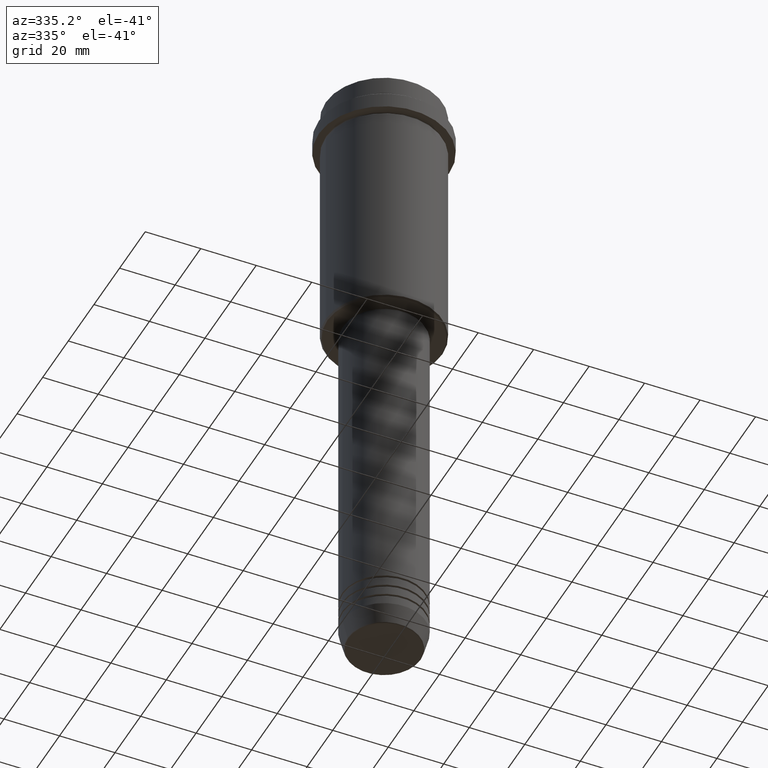
[diagram: clean part render]
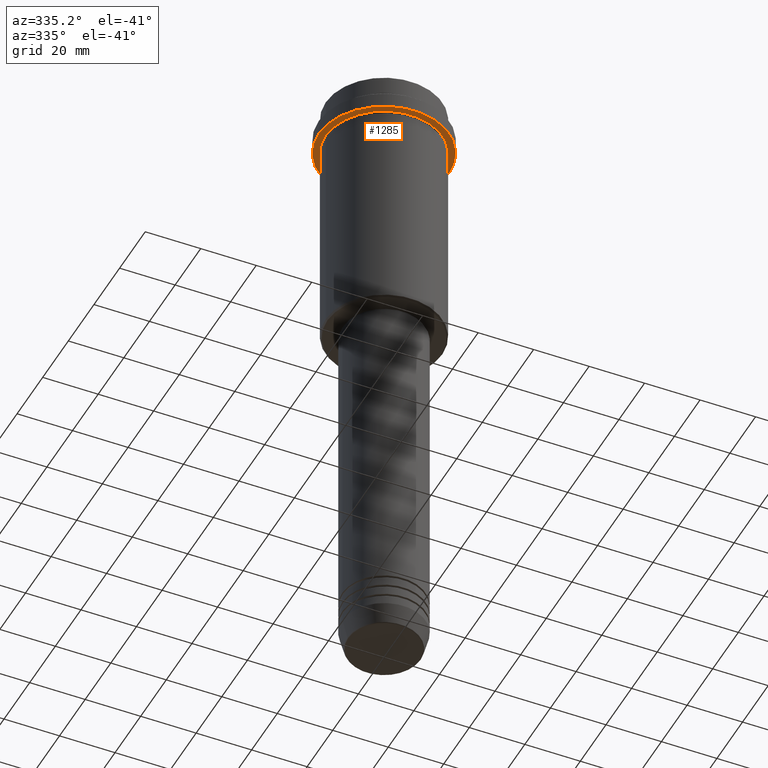
[diagram: same view with one face highlighted and labeled with its STEP entity id]
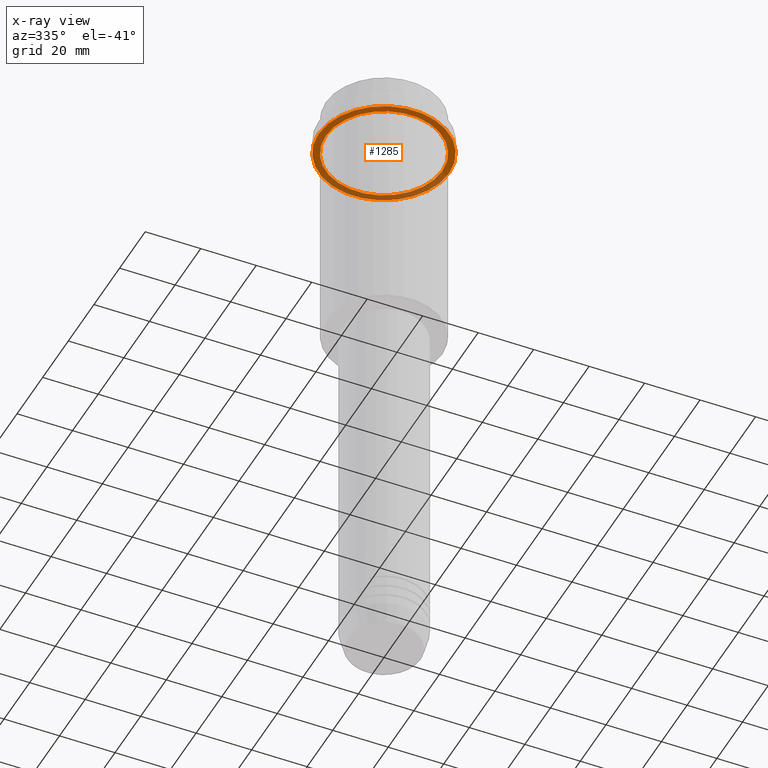
[diagram: x-ray of the same camera — body ghosted, the highlighted face saturated]
A machine part, auxiliary view. The second image highlights one B-rep face of the part: STEP entity #1285.
The next image is the same camera in x-ray: the body ghosted, the highlighted face saturated — about 35% of this face is hidden behind the body in this view.
In plain terms, the highlighted planar face has unit normal (0, 0, -1).
Its self-contained STEP definition (entity closure, byte-faithful):
#35 = CARTESIAN_POINT ( 'NONE',  ( 0.000000000000000000, 23.50000000000000355, -15.00000000000000178 ) ) ;
#203 = DIRECTION ( 'NONE',  ( -0.000000000000000000, -0.000000000000000000, 1.000000000000000000 ) ) ;
#252 = DIRECTION ( 'NONE',  ( -0.000000000000000000, -0.000000000000000000, 1.000000000000000000 ) ) ;
#287 = AXIS2_PLACEMENT_3D ( 'NONE', #621, #203, #1386 ) ;
#343 = EDGE_LOOP ( 'NONE', ( #1315, #1115 ) ) ;
#356 = EDGE_CURVE ( 'NONE', #915, #900, #811, .T. ) ;
#431 = ORIENTED_EDGE ( 'NONE', *, *, #441, .F. ) ;
#441 = EDGE_CURVE ( 'NONE', #900, #915, #927, .T. ) ;
#486 = FACE_BOUND ( 'NONE', #343, .T. ) ;
#514 = CIRCLE ( 'NONE', #544, 20.99999999999999289 ) ;
#521 = CARTESIAN_POINT ( 'NONE',  ( 20.99999999999999289, 2.571758278209440872E-15, -15.00000000000000178 ) ) ;
#532 = VERTEX_POINT ( 'NONE', #521 ) ;
#544 = AXIS2_PLACEMENT_3D ( 'NONE', #992, #891, #652 ) ;
#545 = AXIS2_PLACEMENT_3D ( 'NONE', #35, #936, #1159 ) ;
#594 = EDGE_CURVE ( 'NONE', #996, #532, #1053, .T. ) ;
#621 = CARTESIAN_POINT ( 'NONE',  ( 0.000000000000000000, 0.000000000000000000, -15.00000000000000178 ) ) ;
#629 = AXIS2_PLACEMENT_3D ( 'NONE', #1244, #252, #1133 ) ;
#652 = DIRECTION ( 'NONE',  ( -1.000000000000000000, 0.000000000000000000, 0.000000000000000000 ) ) ;
#666 = DIRECTION ( 'NONE',  ( 1.000000000000000000, 0.000000000000000000, 0.000000000000000000 ) ) ;
#703 = CARTESIAN_POINT ( 'NONE',  ( 23.50000000000000355, 0.000000000000000000, -15.00000000000000178 ) ) ;
#712 = PLANE ( 'NONE',  #545 ) ;
#769 = DIRECTION ( 'NONE',  ( -0.000000000000000000, -0.000000000000000000, 1.000000000000000000 ) ) ;
#778 = EDGE_LOOP ( 'NONE', ( #431, #1229 ) ) ;
#811 = CIRCLE ( 'NONE', #1092, 23.50000000000000355 ) ;
#891 = DIRECTION ( 'NONE',  ( -0.000000000000000000, -0.000000000000000000, 1.000000000000000000 ) ) ;
#900 = VERTEX_POINT ( 'NONE', #703 ) ;
#915 = VERTEX_POINT ( 'NONE', #1033 ) ;
#927 = CIRCLE ( 'NONE', #629, 23.50000000000000355 ) ;
#936 = DIRECTION ( 'NONE',  ( 0.000000000000000000, 0.000000000000000000, -1.000000000000000000 ) ) ;
#958 = CARTESIAN_POINT ( 'NONE',  ( -20.99999999999999289, 0.000000000000000000, -15.00000000000000178 ) ) ;
#992 = CARTESIAN_POINT ( 'NONE',  ( 0.000000000000000000, 0.000000000000000000, -15.00000000000000178 ) ) ;
#996 = VERTEX_POINT ( 'NONE', #958 ) ;
#1023 = FACE_OUTER_BOUND ( 'NONE', #778, .T. ) ;
#1033 = CARTESIAN_POINT ( 'NONE',  ( -23.50000000000000711, 2.877919977996281109E-15, -15.00000000000000178 ) ) ;
#1053 = CIRCLE ( 'NONE', #287, 20.99999999999999289 ) ;
#1092 = AXIS2_PLACEMENT_3D ( 'NONE', #1409, #769, #666 ) ;
#1115 = ORIENTED_EDGE ( 'NONE', *, *, #1129, .T. ) ;
#1129 = EDGE_CURVE ( 'NONE', #532, #996, #514, .T. ) ;
#1133 = DIRECTION ( 'NONE',  ( 1.000000000000000000, 0.000000000000000000, 0.000000000000000000 ) ) ;
#1159 = DIRECTION ( 'NONE',  ( -1.000000000000000000, 0.000000000000000000, -0.000000000000000000 ) ) ;
#1229 = ORIENTED_EDGE ( 'NONE', *, *, #356, .F. ) ;
#1244 = CARTESIAN_POINT ( 'NONE',  ( 0.000000000000000000, 0.000000000000000000, -15.00000000000000178 ) ) ;
#1285 = ADVANCED_FACE ( 'NONE', ( #486, #1023 ), #712, .T. ) ;
#1315 = ORIENTED_EDGE ( 'NONE', *, *, #594, .T. ) ;
#1386 = DIRECTION ( 'NONE',  ( -1.000000000000000000, 0.000000000000000000, 0.000000000000000000 ) ) ;
#1409 = CARTESIAN_POINT ( 'NONE',  ( 0.000000000000000000, 0.000000000000000000, -15.00000000000000178 ) ) ;